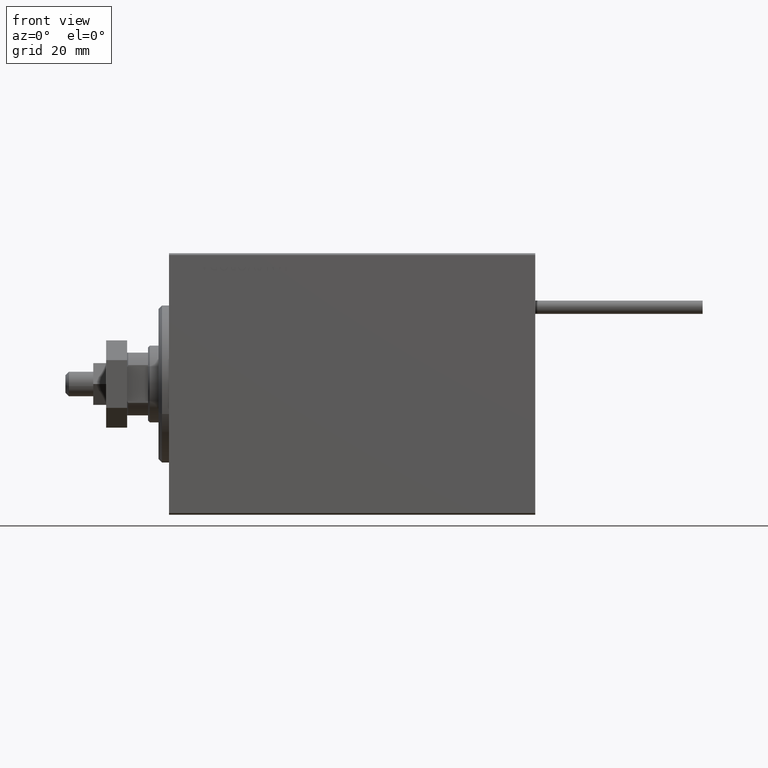
[diagram: clean part render]
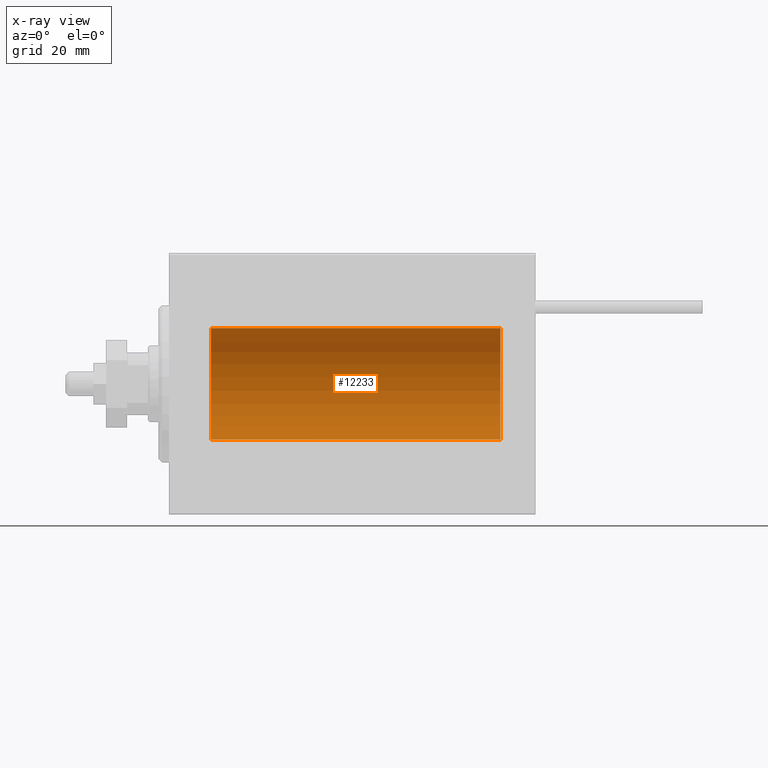
[diagram: x-ray — body ghosted, one internal face saturated and labeled with its STEP entity id]
A machine part, front view, then the same camera in x-ray: the body is ghosted and one INTERNAL B-rep face — a face not visible from any outside direction — is saturated and labeled: STEP entity #12233.
In plain terms, the highlighted cylindrical surface (partial cylindrical patch) has radius 16 mm, axis along (-1, -0, -0).
Its self-contained STEP definition (entity closure, byte-faithful):
#534 = CARTESIAN_POINT ( 'NONE',  ( 95.00000000000000000, 0.000000000000000000, 16.00000000000000000 ) ) ;
#1149 = CARTESIAN_POINT ( 'NONE',  ( 95.00000000000000000, 1.959434878635765131E-15, -16.00000000000000000 ) ) ;
#2440 = DIRECTION ( 'NONE',  ( 0.000000000000000000, 0.000000000000000000, 1.000000000000000000 ) ) ;
#2723 = VERTEX_POINT ( 'NONE', #30866 ) ;
#3322 = DIRECTION ( 'NONE',  ( -1.000000000000000000, -0.000000000000000000, -0.000000000000000000 ) ) ;
#7642 = CARTESIAN_POINT ( 'NONE',  ( 95.00000000000000000, 1.959434878635765131E-15, -16.00000000000000000 ) ) ;
#9063 = DIRECTION ( 'NONE',  ( 0.000000000000000000, 0.000000000000000000, 1.000000000000000000 ) ) ;
#9233 = AXIS2_PLACEMENT_3D ( 'NONE', #18582, #25397, #2440 ) ;
#9543 = ORIENTED_EDGE ( 'NONE', *, *, #14055, .F. ) ;
#9551 = CYLINDRICAL_SURFACE ( 'NONE', #45274, 16.00000000000000000 ) ;
#11041 = VERTEX_POINT ( 'NONE', #34372 ) ;
#12233 = ADVANCED_FACE ( 'NONE', ( #40338 ), #9551, .F. ) ;
#13824 = VECTOR ( 'NONE', #22794, 1000.000000000000000 ) ;
#14055 = EDGE_CURVE ( 'NONE', #47167, #36348, #48555, .T. ) ;
#15964 = LINE ( 'NONE', #7642, #13824 ) ;
#17380 = DIRECTION ( 'NONE',  ( -1.000000000000000000, -0.000000000000000000, -0.000000000000000000 ) ) ;
#18582 = CARTESIAN_POINT ( 'NONE',  ( 11.99999999999999645, 0.000000000000000000, 0.000000000000000000 ) ) ;
#19459 = EDGE_CURVE ( 'NONE', #2723, #11041, #31784, .T. ) ;
#20517 = ORIENTED_EDGE ( 'NONE', *, *, #49086, .F. ) ;
#22794 = DIRECTION ( 'NONE',  ( -1.000000000000000000, -0.000000000000000000, -0.000000000000000000 ) ) ;
#24809 = CARTESIAN_POINT ( 'NONE',  ( 95.00000000000000000, 0.000000000000000000, 0.000000000000000000 ) ) ;
#25397 = DIRECTION ( 'NONE',  ( -1.000000000000000000, 0.000000000000000000, 0.000000000000000000 ) ) ;
#26759 = AXIS2_PLACEMENT_3D ( 'NONE', #24809, #37157, #29592 ) ;
#29207 = CARTESIAN_POINT ( 'NONE',  ( 95.00000000000000000, 0.000000000000000000, 16.00000000000000000 ) ) ;
#29417 = EDGE_CURVE ( 'NONE', #47167, #2723, #42680, .T. ) ;
#29592 = DIRECTION ( 'NONE',  ( 0.000000000000000000, 0.000000000000000000, 1.000000000000000000 ) ) ;
#30866 = CARTESIAN_POINT ( 'NONE',  ( 11.99999999999999645, 0.000000000000000000, 16.00000000000000000 ) ) ;
#31784 = CIRCLE ( 'NONE', #9233, 16.00000000000000000 ) ;
#33202 = EDGE_LOOP ( 'NONE', ( #20517, #9543, #37956, #40920 ) ) ;
#34372 = CARTESIAN_POINT ( 'NONE',  ( 11.99999999999999645, 1.959434878635765131E-15, -16.00000000000000000 ) ) ;
#36348 = VERTEX_POINT ( 'NONE', #1149 ) ;
#37157 = DIRECTION ( 'NONE',  ( -1.000000000000000000, 0.000000000000000000, 0.000000000000000000 ) ) ;
#37956 = ORIENTED_EDGE ( 'NONE', *, *, #29417, .T. ) ;
#40338 = FACE_OUTER_BOUND ( 'NONE', #33202, .T. ) ;
#40673 = VECTOR ( 'NONE', #3322, 1000.000000000000000 ) ;
#40920 = ORIENTED_EDGE ( 'NONE', *, *, #19459, .T. ) ;
#42680 = LINE ( 'NONE', #534, #40673 ) ;
#43886 = CARTESIAN_POINT ( 'NONE',  ( 95.00000000000000000, 0.000000000000000000, 0.000000000000000000 ) ) ;
#45274 = AXIS2_PLACEMENT_3D ( 'NONE', #43886, #17380, #9063 ) ;
#47167 = VERTEX_POINT ( 'NONE', #29207 ) ;
#48555 = CIRCLE ( 'NONE', #26759, 16.00000000000000000 ) ;
#49086 = EDGE_CURVE ( 'NONE', #36348, #11041, #15964, .T. ) ;